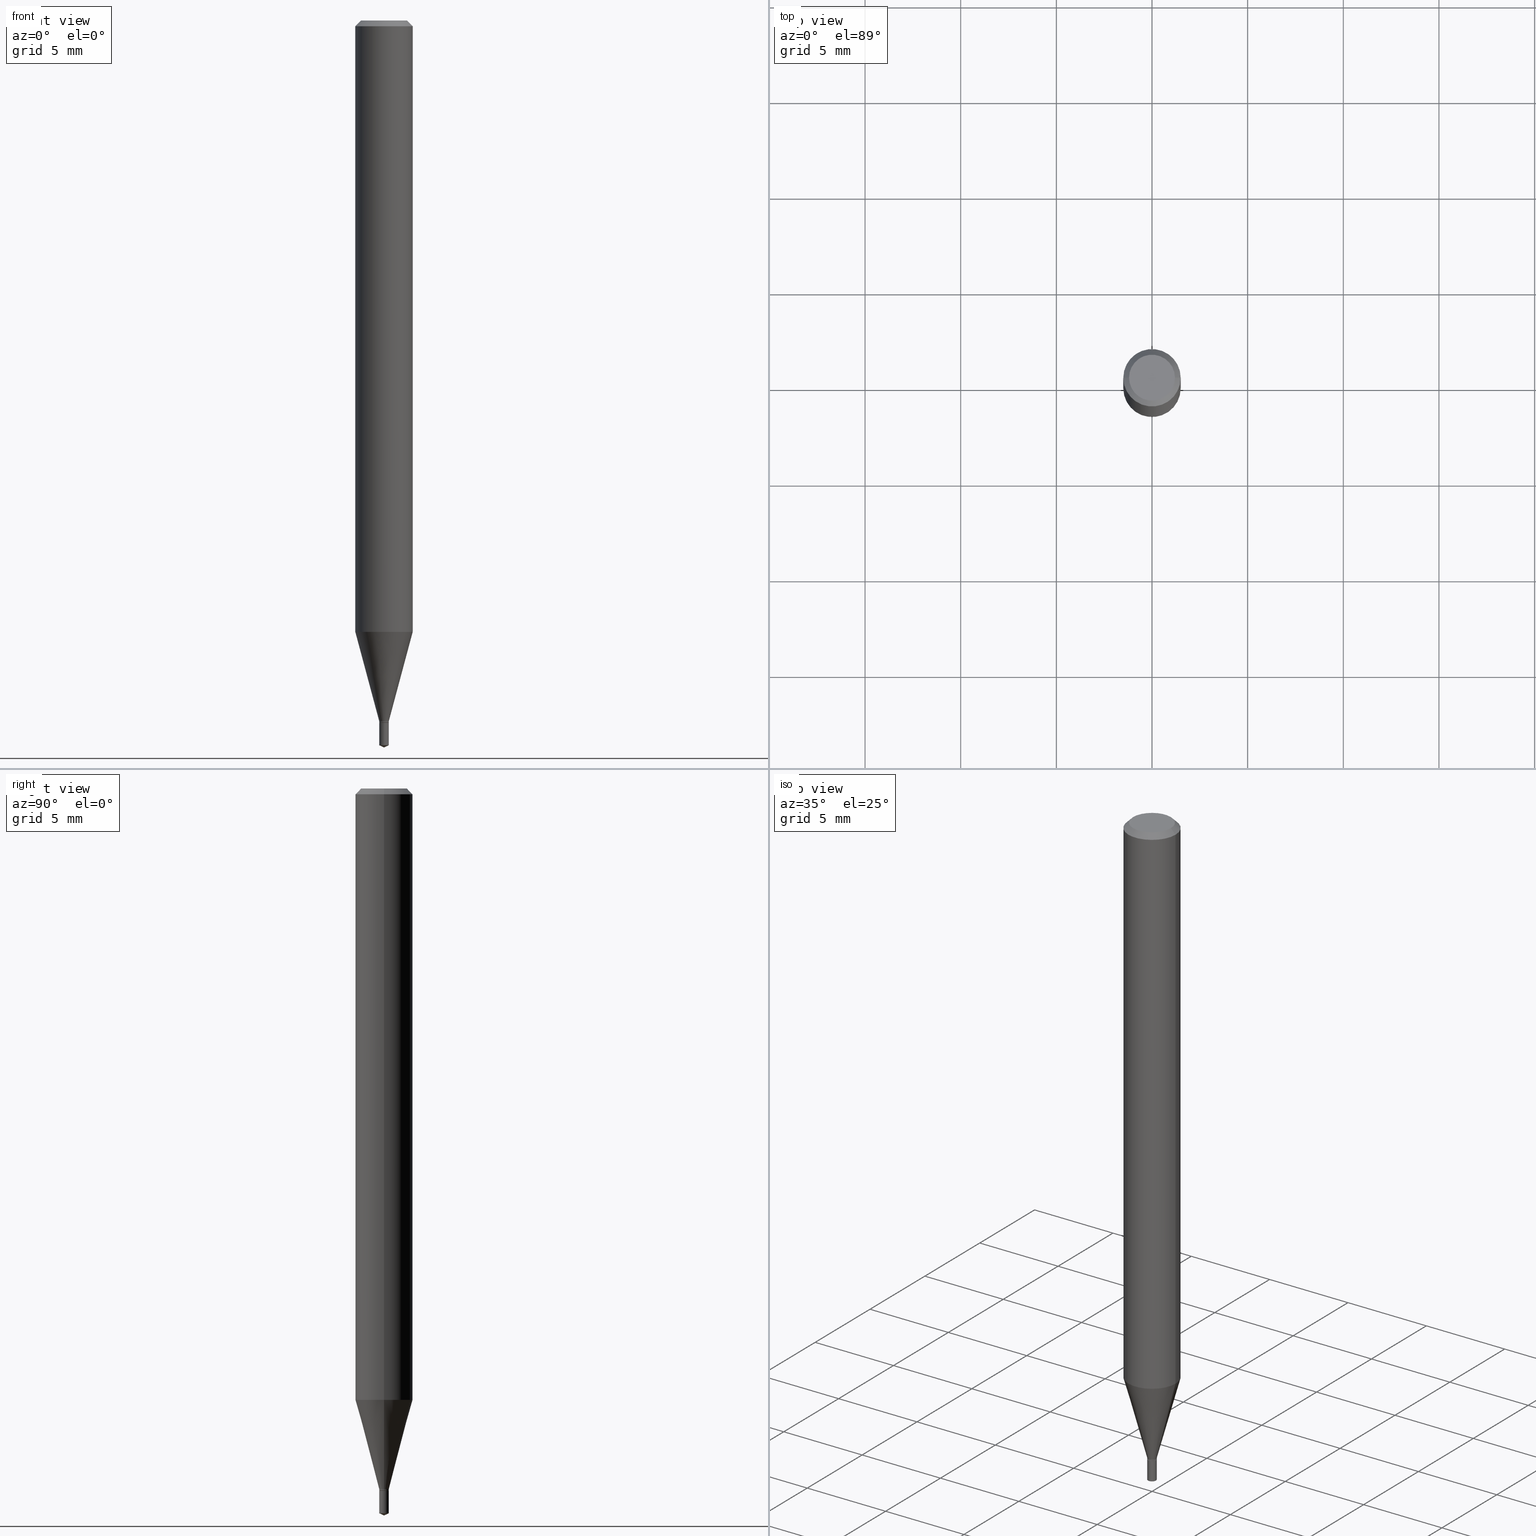
[diagram: canonical four-view strip — front | top / right | iso, engineering-drawing reading convention]
A machine part, canonical four-view strip (front | top / right | iso — engineering-drawing reading convention). The complete STEP part file that produces these views, byte-faithful:
ISO-10303-21;
HEADER;
FILE_DESCRIPTION (( 'STEP AP203' ),
    '1' );
FILE_NAME ('07059.STEP',
    '2024-04-23T19:28:40',
    ( '' ),
    ( '' ),
    'SwSTEP 2.0',
    'SolidWorks 2023',
    '' );
FILE_SCHEMA (( 'CONFIG_CONTROL_DESIGN' ));
ENDSEC;

DATA;
#1 = FACE_OUTER_BOUND ( 'NONE', #410, .T. ) ;
#2 = ORIENTED_EDGE ( 'NONE', *, *, #235, .F. ) ;
#3 = DIRECTION ( 'NONE',  ( -2.445468806185136597E-29, 3.491481338843145583E-15, 1.000000000000000000 ) ) ;
#4 = AXIS2_PLACEMENT_3D ( 'NONE', #239, #310, #191 ) ;
#5 = CARTESIAN_POINT ( 'NONE',  ( 3.533457878056902611E-29, -5.044841386494460595E-15, -1.444899999999999629 ) ) ;
#6 = LINE ( 'NONE', #50, #71 ) ;
#7 = DIRECTION ( 'NONE',  ( 2.438088387897960049E-29, -3.491481338843145188E-15, -1.000000000000000000 ) ) ;
#8 = DIRECTION ( 'NONE',  ( 1.000000000000000000, -6.982962677686229634E-15, 0.000000000000000000 ) ) ;
#9 = AXIS2_PLACEMENT_3D ( 'NONE', #478, #259, #104 ) ;
#10 = CC_DESIGN_PERSON_AND_ORGANIZATION_ASSIGNMENT ( #113, #369, ( #434 ) ) ;
#11 = LOCAL_TIME ( 15, 28, 40.00000000000000000, #426 ) ;
#12 = DIRECTION ( 'NONE',  ( -6.328713451373396200E-15, -0.9063077870366522681, 0.4226182617406940567 ) ) ;
#13 = PERSON ( 'UNSPECIFIED', 'UNSPECIFIED', 'UNSPECIFIED', ('UNSPECIFIED'), ('UNSPECIFIED'), ('UNSPECIFIED') ) ;
#14 = DIRECTION ( 'NONE',  ( -2.445468806185136597E-29, 3.491481338843145583E-15, 1.000000000000000000 ) ) ;
#15 = CALENDAR_DATE ( 2024, 23, 4 ) ;
#16 = ORIENTED_EDGE ( 'NONE', *, *, #320, .T. ) ;
#17 = ADVANCED_FACE ( 'NONE', ( #296 ), #302, .T. ) ;
#18 = CARTESIAN_POINT ( 'NONE',  ( 0.04724000000000000421, -3.852183633974369345E-16, -3.380025165621689721E-19 ) ) ;
#19 = CONICAL_SURFACE ( 'NONE', #295, 0.009349999999999998937, 0.7853981633978228682 ) ;
#20 = DIRECTION ( 'NONE',  ( 1.000000000000000000, -6.982962677686229634E-15, 0.000000000000000000 ) ) ;
#21 = CARTESIAN_POINT ( 'NONE',  ( 3.533457878056902611E-29, -5.044841386494460595E-15, -1.444899999999999629 ) ) ;
#22 = EDGE_CURVE ( 'NONE', #380, #157, #210, .T. ) ;
#23 = DIRECTION ( 'NONE',  ( -2.445468806185136597E-29, 3.491481338843145583E-15, 1.000000000000000000 ) ) ;
#24 = DIRECTION ( 'NONE',  ( 1.000000000000000000, 0.000000000000000000, 0.000000000000000000 ) ) ;
#25 = EDGE_CURVE ( 'NONE', #193, #217, #211, .T. ) ;
#26 = CIRCLE ( 'NONE', #106, 0.009849999999999995912 ) ;
#27 = APPROVAL_PERSON_ORGANIZATION ( #73, #286, #215 ) ;
#28 = CYLINDRICAL_SURFACE ( 'NONE', #367, 0.05905000000000008159 ) ;
#29 = APPLICATION_PROTOCOL_DEFINITION ( 'international standard', 'config_control_design', 1994, #437 ) ;
#30 = CARTESIAN_POINT ( 'NONE',  ( 2.888098660104662452E-31, -4.123439461173777798E-17, -0.01181000000000006697 ) ) ;
#31 = ORIENTED_EDGE ( 'NONE', *, *, #123, .F. ) ;
#32 = DIRECTION ( 'NONE',  ( -1.000000000000000000, 6.982962677686266711E-15, 0.000000000000000000 ) ) ;
#33 = ORIENTED_EDGE ( 'NONE', *, *, #67, .T. ) ;
#34 = CARTESIAN_POINT ( 'NONE',  ( 3.526121471638348605E-29, -5.034366942477931573E-15, -1.441899999999999959 ) ) ;
#35 = AXIS2_PLACEMENT_3D ( 'NONE', #308, #373, #78 ) ;
#36 = CIRCLE ( 'NONE', #85, 0.009849999999999999381 ) ;
#37 = CALENDAR_DATE ( 2024, 23, 4 ) ;
#38 = EDGE_LOOP ( 'NONE', ( #414, #255 ) ) ;
#39 = CARTESIAN_POINT ( 'NONE',  ( 3.533457878056903732E-29, -5.044841386494461384E-15, -1.444899999999999851 ) ) ;
#40 = SHAPE_DEFINITION_REPRESENTATION ( #63, #43 ) ;
#41 = ORIENTED_EDGE ( 'NONE', *, *, #320, .F. ) ;
#42 = ADVANCED_FACE ( 'NONE', ( #256 ), #318, .T. ) ;
#43 = ADVANCED_BREP_SHAPE_REPRESENTATION ( '07059', ( #479, #333, #261 ), #468 ) ;
#44 = FACE_OUTER_BOUND ( 'NONE', #51, .T. ) ;
#45 = ORIENTED_EDGE ( 'NONE', *, *, #115, .F. ) ;
#46 = DATE_TIME_ROLE ( 'classification_date' ) ;
#47 = ORIENTED_EDGE ( 'NONE', *, *, #218, .F. ) ;
#48 = VECTOR ( 'NONE', #159, 39.37007874015748143 ) ;
#49 = DIRECTION ( 'NONE',  ( -2.445468806185136597E-29, 3.491481338843145583E-15, 1.000000000000000000 ) ) ;
#50 = CARTESIAN_POINT ( 'NONE',  ( -0.009849999999999999381, 6.998845947236986391E-17, -4.845151063901081251E-31 ) ) ;
#51 = EDGE_LOOP ( 'NONE', ( #163, #394, #377, #47 ) ) ;
#52 = CC_DESIGN_PERSON_AND_ORGANIZATION_ASSIGNMENT ( #77, #232, ( #303 ) ) ;
#53 = CARTESIAN_POINT ( 'NONE',  ( 3.526121471638348605E-29, -5.034366942477931573E-15, -1.441899999999999959 ) ) ;
#54 = DESIGN_CONTEXT ( 'detailed design', #449, 'design' ) ;
#55 = CONICAL_SURFACE ( 'NONE', #172, 0.009849999999999999381, 0.2617993877991498519 ) ;
#56 = CIRCLE ( 'NONE', #195, 0.009849999999999999381 ) ;
#57 = EDGE_LOOP ( 'NONE', ( #429, #204, #323, #311 ) ) ;
#58 = ORIENTED_EDGE ( 'NONE', *, *, #486, .T. ) ;
#59 = ORIENTED_EDGE ( 'NONE', *, *, #93, .T. ) ;
#60 = DIRECTION ( 'NONE',  ( 1.000000000000000000, -6.982962677686229634E-15, 0.000000000000000000 ) ) ;
#61 = ORIENTED_EDGE ( 'NONE', *, *, #396, .F. ) ;
#62 = DIRECTION ( 'NONE',  ( -2.445468806185136597E-29, 3.491481338843145583E-15, 1.000000000000000000 ) ) ;
#63 = PRODUCT_DEFINITION_SHAPE ( 'NONE', 'NONE',  #161 ) ;
#64 = AXIS2_PLACEMENT_3D ( 'NONE', #130, #87, #118 ) ;
#65 = AXIS2_PLACEMENT_3D ( 'NONE', #364, #438, #178 ) ;
#66 = DIRECTION ( 'NONE',  ( 6.439704144417050863E-15, 0.9063077870366551547, 0.4226182617406878395 ) ) ;
#67 = EDGE_CURVE ( 'NONE', #313, #448, #415, .T. ) ;
#68 = DIRECTION ( 'NONE',  ( -2.445468806185136597E-29, 3.491481338843145583E-15, 1.000000000000000000 ) ) ;
#69 = CARTESIAN_POINT ( 'NONE',  ( 0.009849999999999999381, -5.111877828200249487E-15, -1.444400000000000128 ) ) ;
#70 = APPROVAL_ROLE ( '' ) ;
#71 = VECTOR ( 'NONE', #460, 39.37007874015748143 ) ;
#72 = CARTESIAN_POINT ( 'NONE',  ( 3.533457878056902611E-29, -5.044841386494460595E-15, -1.444899999999999629 ) ) ;
#73 = PERSON_AND_ORGANIZATION ( #13, #238 ) ;
#74 = EDGE_LOOP ( 'NONE', ( #33, #201, #61, #80 ) ) ;
#75 = ADVANCED_FACE ( 'NONE', ( #466 ), #353, .F. ) ;
#76 = DIRECTION ( 'NONE',  ( 1.000000000000000000, -6.982962677686267499E-15, 4.876176775795936353E-29 ) ) ;
#77 = PERSON_AND_ORGANIZATION ( #13, #238 ) ;
#78 = DIRECTION ( 'NONE',  ( 1.000000000000000000, -6.982962677686266711E-15, 4.876185090822587894E-29 ) ) ;
#79 = DATE_AND_TIME ( #487, #316 ) ;
#80 = ORIENTED_EDGE ( 'NONE', *, *, #93, .F. ) ;
#81 = VECTOR ( 'NONE', #432, 39.37007874015748143 ) ;
#82 = DIRECTION ( 'NONE',  ( 1.000000000000000000, -6.982962677686229634E-15, 0.000000000000000000 ) ) ;
#83 = CIRCLE ( 'NONE', #35, 0.04724000000000000421 ) ;
#84 = ADVANCED_FACE ( 'NONE', ( #168 ), #156, .T. ) ;
#85 = AXIS2_PLACEMENT_3D ( 'NONE', #147, #260, #398 ) ;
#86 = ORIENTED_EDGE ( 'NONE', *, *, #22, .T. ) ;
#87 = DIRECTION ( 'NONE',  ( -2.488523630950229593E-29, 3.429824379251090746E-15, 1.000000000000000000 ) ) ;
#88 = APPROVAL ( #267, 'UNSPECIFIED' ) ;
#89 = ORIENTED_EDGE ( 'NONE', *, *, #246, .T. ) ;
#90 = CARTESIAN_POINT ( 'NONE',  ( 3.649440174339429829E-29, -5.204694763976527624E-15, -1.491506869567173377 ) ) ;
#91 = CC_DESIGN_APPROVAL ( #103, ( #207 ) ) ;
#92 = CLOSED_SHELL ( 'NONE', ( #227, #17, #132, #446, #42, #309, #109, #300, #352, #75, #186, #424 ) ) ;
#93 = EDGE_CURVE ( 'NONE', #313, #347, #287, .T. ) ;
#94 = LENGTH_MEASURE_WITH_UNIT ( LENGTH_MEASURE( 0.02539999999999999897 ), #289 );
#95 = DIRECTION ( 'NONE',  ( 2.445468806185136597E-29, -3.491481338843145583E-15, -1.000000000000000000 ) ) ;
#96 = CARTESIAN_POINT ( 'NONE',  ( 0.000000000000000000, 0.000000000000000000, 0.000000000000000000 ) ) ;
#97 =( CONVERSION_BASED_UNIT ( 'INCH', #94 ) LENGTH_UNIT ( ) NAMED_UNIT ( #202 ) );
#98 = LINE ( 'NONE', #176, #237 ) ;
#99 = EDGE_CURVE ( 'NONE', #157, #372, #26, .T. ) ;
#100 = CC_DESIGN_SECURITY_CLASSIFICATION ( #207, ( #303 ) ) ;
#101 = EDGE_LOOP ( 'NONE', ( #382, #230, #125, #453 ) ) ;
#102 = DIRECTION ( 'NONE',  ( 1.000000000000000000, -6.982962677686276177E-15, 0.000000000000000000 ) ) ;
#103 = APPROVAL ( #409, 'UNSPECIFIED' ) ;
#104 = DIRECTION ( 'NONE',  ( 1.000000000000000000, -6.982962677686266711E-15, 0.000000000000000000 ) ) ;
#105 = CARTESIAN_POINT ( 'NONE',  ( -6.878218237517437962E-17, -0.009850000000005043957, -1.444899999999999851 ) ) ;
#106 = AXIS2_PLACEMENT_3D ( 'NONE', #90, #319, #212 ) ;
#107 = CIRCLE ( 'NONE', #4, 0.009849999999999999381 ) ;
#108 = CONICAL_SURFACE ( 'NONE', #436, 0.009349999999999998937, 0.7853981633978228682 ) ;
#109 = ADVANCED_FACE ( 'NONE', ( #359 ), #55, .T. ) ;
#110 = CARTESIAN_POINT ( 'NONE',  ( 3.301311524714627956E-28, 3.717170584393863405E-14, -1.444899999999999629 ) ) ;
#111 = DATE_AND_TIME ( #15, #11 ) ;
#112 = CARTESIAN_POINT ( 'NONE',  ( -0.009349999999999998937, -4.975756413526781032E-15, -1.444899999999999629 ) ) ;
#113 = PERSON_AND_ORGANIZATION ( #13, #238 ) ;
#114 = DIRECTION ( 'NONE',  ( 1.000000000000000000, -6.982962677686265922E-15, 4.876176775795935793E-29 ) ) ;
#115 = EDGE_CURVE ( 'NONE', #372, #298, #461, .T. ) ;
#116 = PERSON_AND_ORGANIZATION ( #13, #238 ) ;
#117 = EDGE_LOOP ( 'NONE', ( #350, #16 ) ) ;
#118 = DIRECTION ( 'NONE',  ( -6.982962677686265133E-15, -1.000000000000000000, 0.000000000000000000 ) ) ;
#119 = DATE_AND_TIME ( #371, #355 ) ;
#120 = VERTEX_POINT ( 'NONE', #420 ) ;
#121 = FACE_OUTER_BOUND ( 'NONE', #284, .T. ) ;
#122 = ORIENTED_EDGE ( 'NONE', *, *, #99, .T. ) ;
#123 = EDGE_CURVE ( 'NONE', #198, #245, #184, .T. ) ;
#124 = CARTESIAN_POINT ( 'NONE',  ( 6.998845947240634873E-17, 0.009849999999994791741, -1.491506869567173377 ) ) ;
#125 = ORIENTED_EDGE ( 'NONE', *, *, #441, .T. ) ;
#126 = VECTOR ( 'NONE', #12, 39.37007874015748854 ) ;
#127 = CARTESIAN_POINT ( 'NONE',  ( 3.077092071054366958E-29, -4.393271963566061633E-15, -1.258283100267610921 ) ) ;
#128 = AXIS2_PLACEMENT_3D ( 'NONE', #127, #3, #241 ) ;
#129 = VERTEX_POINT ( 'NONE', #464 ) ;
#130 = CARTESIAN_POINT ( 'NONE',  ( 3.533457878056903732E-29, -5.044841386494461384E-15, -1.444899999999999851 ) ) ;
#131 = CARTESIAN_POINT ( 'NONE',  ( 3.598660371658472125E-29, -5.309536535626676352E-15, -1.496099999999999985 ) ) ;
#132 = ADVANCED_FACE ( 'NONE', ( #209 ), #135, .T. ) ;
#133 = DIRECTION ( 'NONE',  ( -2.488523630950229873E-29, 3.429824379251091140E-15, 1.000000000000000000 ) ) ;
#134 = VECTOR ( 'NONE', #66, 39.37007874015748854 ) ;
#135 = CYLINDRICAL_SURFACE ( 'NONE', #290, 0.05905000000000008159 ) ;
#136 = CARTESIAN_POINT ( 'NONE',  ( -9.431250100929159114E-28, 1.298120074813150905E-13, 37.87397874015748300 ) ) ;
#137 = COORDINATED_UNIVERSAL_TIME_OFFSET ( 5, 0, .BEHIND. ) ;
#138 = ORIENTED_EDGE ( 'NONE', *, *, #175, .T. ) ;
#139 = CONICAL_SURFACE ( 'NONE', #288, 84.42940631927601203, 1.134464013796323556 ) ;
#140 = DIRECTION ( 'NONE',  ( -0.7071067811865454633, 2.468850131082235367E-15, -0.7071067811865495711 ) ) ;
#141 = EDGE_LOOP ( 'NONE', ( #356, #86, #386 ) ) ;
#142 = LINE ( 'NONE', #105, #368 ) ;
#143 = EDGE_CURVE ( 'NONE', #240, #245, #98, .T. ) ;
#144 = CARTESIAN_POINT ( 'NONE',  ( 3.532235143653811491E-29, -5.043095645825039880E-15, -1.444400000000000128 ) ) ;
#145 = AXIS2_PLACEMENT_3D ( 'NONE', #222, #23, #183 ) ;
#146 = DIRECTION ( 'NONE',  ( -0.2588190451025211281, 5.211531920934547886E-15, 0.9659258262890679791 ) ) ;
#147 = CARTESIAN_POINT ( 'NONE',  ( 3.533457878056903732E-29, -5.044841386494461384E-15, -1.444899999999999851 ) ) ;
#148 = EDGE_CURVE ( 'NONE', #372, #157, #455, .T. ) ;
#149 = MECHANICAL_CONTEXT ( 'NONE', #437, 'mechanical' ) ;
#150 = EDGE_LOOP ( 'NONE', ( #407, #473, #482, #31 ) ) ;
#151 = CARTESIAN_POINT ( 'NONE',  ( 0.000000000000000000, 0.000000000000000000, 0.000000000000000000 ) ) ;
#152 = APPROVAL_STATUS ( 'not_yet_approved' ) ;
#153 = ORIENTED_EDGE ( 'NONE', *, *, #463, .T. ) ;
#154 = VECTOR ( 'NONE', #474, 39.37007874015748143 ) ;
#155 = CARTESIAN_POINT ( 'NONE',  ( 3.526121471638348605E-29, -5.034366942477931573E-15, -1.441899999999999959 ) ) ;
#156 = CONICAL_SURFACE ( 'NONE', #321, 84.42940631927601203, 1.134464013796323556 ) ;
#157 = VERTEX_POINT ( 'NONE', #216 ) ;
#158 = ADVANCED_FACE ( 'NONE', ( #338 ), #306, .F. ) ;
#159 = DIRECTION ( 'NONE',  ( -0.7071067811868123609, 7.493145998871311837E-15, 0.7071067811862826735 ) ) ;
#160 = ORIENTED_EDGE ( 'NONE', *, *, #363, .F. ) ;
#161 = PRODUCT_DEFINITION ( 'UNKNOWN', '', #303, #54 ) ;
#162 = CARTESIAN_POINT ( 'NONE',  ( -0.009349999999999998937, -4.978405640700890656E-15, -1.444899999999999629 ) ) ;
#163 = ORIENTED_EDGE ( 'NONE', *, *, #472, .F. ) ;
#164 = DIRECTION ( 'NONE',  ( -2.445468806185136597E-29, 3.491481338843145583E-15, 1.000000000000000000 ) ) ;
#165 = VECTOR ( 'NONE', #146, 39.37007874015748854 ) ;
#166 = ORIENTED_EDGE ( 'NONE', *, *, #206, .F. ) ;
#167 = DIRECTION ( 'NONE',  ( -2.488523630950229593E-29, 3.429824379251090746E-15, 1.000000000000000000 ) ) ;
#168 = FACE_OUTER_BOUND ( 'NONE', #141, .T. ) ;
#169 = VECTOR ( 'NONE', #133, 39.37007874015748143 ) ;
#170 = CARTESIAN_POINT ( 'NONE',  ( 2.888098660104662452E-31, -4.123439461173777798E-17, -0.01181000000000006697 ) ) ;
#171 = AXIS2_PLACEMENT_3D ( 'NONE', #155, #374, #447 ) ;
#172 = AXIS2_PLACEMENT_3D ( 'NONE', #53, #422, #8 ) ;
#173 = EDGE_CURVE ( 'NONE', #380, #372, #301, .T. ) ;
#174 = CARTESIAN_POINT ( 'NONE',  ( 0.000000000000000000, 0.000000000000000000, 0.000000000000000000 ) ) ;
#175 = EDGE_CURVE ( 'NONE', #245, #198, #304, .T. ) ;
#176 = CARTESIAN_POINT ( 'NONE',  ( 0.05904999999999999832, -4.463468013801466955E-16, -0.01181000000000006697 ) ) ;
#177 = APPROVAL_DATE_TIME ( #119, #286 ) ;
#178 = DIRECTION ( 'NONE',  ( -6.982962677686265922E-15, -1.000000000000000000, 0.000000000000000000 ) ) ;
#179 = APPROVAL_PERSON_ORGANIZATION ( #205, #103, #379 ) ;
#180 = CARTESIAN_POINT ( 'NONE',  ( 3.533457878056902611E-29, -5.044841386494460595E-15, -1.444899999999999629 ) ) ;
#181 = EDGE_CURVE ( 'NONE', #307, #198, #395, .T. ) ;
#182 = DIRECTION ( 'NONE',  ( 1.000000000000000000, -6.982962677686276177E-15, 0.000000000000000000 ) ) ;
#183 = DIRECTION ( 'NONE',  ( 1.000000000000000000, -6.982962677686266711E-15, 4.876185090822587894E-29 ) ) ;
#184 = CIRCLE ( 'NONE', #433, 0.05904999999999999832 ) ;
#185 = APPLICATION_PROTOCOL_DEFINITION ( 'international standard', 'config_control_design', 1994, #449 ) ;
#186 = ADVANCED_FACE ( 'NONE', ( #435 ), #440, .F. ) ;
#187 = CARTESIAN_POINT ( 'NONE',  ( -0.05905000000000008159, 4.195754854663397395E-16, -2.904631170795525745E-30 ) ) ;
#188 = PERSON_AND_ORGANIZATION ( #13, #238 ) ;
#189 = CC_DESIGN_DATE_AND_TIME_ASSIGNMENT ( #452, #46, ( #207 ) ) ;
#190 = CARTESIAN_POINT ( 'NONE',  ( 3.723080204264637999E-29, -5.131360253797555667E-15, -1.496099999999999985 ) ) ;
#191 = DIRECTION ( 'NONE',  ( -6.982962677686265133E-15, -1.000000000000000000, 0.000000000000000000 ) ) ;
#192 = SECURITY_CLASSIFICATION_LEVEL ( 'unclassified' ) ;
#193 = VERTEX_POINT ( 'NONE', #112 ) ;
#194 = DIRECTION ( 'NONE',  ( -2.445468806185136597E-29, 3.491481338843145583E-15, 1.000000000000000000 ) ) ;
#195 = AXIS2_PLACEMENT_3D ( 'NONE', #144, #62, #20 ) ;
#196 = CC_DESIGN_DATE_AND_TIME_ASSIGNMENT ( #481, #391, ( #161 ) ) ;
#197 = APPROVAL_DATE_TIME ( #79, #103 ) ;
#198 = VERTEX_POINT ( 'NONE', #268 ) ;
#199 = CARTESIAN_POINT ( 'NONE',  ( -9.431250100929159114E-28, 1.298120074813150905E-13, 37.87397874015748300 ) ) ;
#200 = COORDINATED_UNIVERSAL_TIME_OFFSET ( 5, 0, .BEHIND. ) ;
#201 = ORIENTED_EDGE ( 'NONE', *, *, #275, .T. ) ;
#202 = DIMENSIONAL_EXPONENTS ( 1.000000000000000000, 0.000000000000000000, 0.000000000000000000, 0.000000000000000000, 0.000000000000000000, 0.000000000000000000, 0.000000000000000000 ) ;
#203 = DIRECTION ( 'NONE',  ( -2.445468806185136597E-29, 3.491481338843145583E-15, 1.000000000000000000 ) ) ;
#204 = ORIENTED_EDGE ( 'NONE', *, *, #181, .T. ) ;
#205 = PERSON_AND_ORGANIZATION ( #13, #238 ) ;
#206 = EDGE_CURVE ( 'NONE', #120, #198, #400, .T. ) ;
#207 = SECURITY_CLASSIFICATION ( '', '', #192 ) ;
#208 = DIRECTION ( 'NONE',  ( -2.445468806185136597E-29, 3.491481338843145583E-15, 1.000000000000000000 ) ) ;
#209 = FACE_OUTER_BOUND ( 'NONE', #57, .T. ) ;
#210 = LINE ( 'NONE', #131, #126 ) ;
#211 = CIRCLE ( 'NONE', #413, 0.009349999999999998937 ) ;
#212 = DIRECTION ( 'NONE',  ( -6.982962677686265922E-15, -1.000000000000000000, 0.000000000000000000 ) ) ;
#213 = CIRCLE ( 'NONE', #145, 0.04724000000000000421 ) ;
#214 = DIRECTION ( 'NONE',  ( -1.000000000000000000, 6.982962677686265922E-15, -4.876176775795935793E-29 ) ) ;
#215 = APPROVAL_ROLE ( '' ) ;
#216 = CARTESIAN_POINT ( 'NONE',  ( -6.878218237517319633E-17, -0.009850000000005203551, -1.491506869567173377 ) ) ;
#217 = VERTEX_POINT ( 'NONE', #362 ) ;
#218 = EDGE_CURVE ( 'NONE', #129, #280, #56, .T. ) ;
#219 = CARTESIAN_POINT ( 'NONE',  ( 3.533457878056903732E-29, -5.044841386494461384E-15, -1.444899999999999851 ) ) ;
#220 = LOCAL_TIME ( 15, 28, 40.00000000000000000, #137 ) ;
#221 = AXIS2_PLACEMENT_3D ( 'NONE', #357, #95, #248 ) ;
#222 = CARTESIAN_POINT ( 'NONE',  ( 8.265746106709734507E-48, -1.180129479067563789E-33, -3.380025165646692144E-19 ) ) ;
#223 = DIRECTION ( 'NONE',  ( -2.488523630950229873E-29, 3.429824379251091140E-15, 1.000000000000000000 ) ) ;
#224 = CARTESIAN_POINT ( 'NONE',  ( 6.998845947240634873E-17, 0.009849999999994953070, -1.444899999999999851 ) ) ;
#225 = VECTOR ( 'NONE', #381, 39.37007874015748143 ) ;
#226 = APPROVAL_DATE_TIME ( #111, #88 ) ;
#227 = ADVANCED_FACE ( 'NONE', ( #297 ), #108, .T. ) ;
#228 = DIRECTION ( 'NONE',  ( -6.982962677686265133E-15, -1.000000000000000000, 0.000000000000000000 ) ) ;
#229 = COORDINATED_UNIVERSAL_TIME_OFFSET ( 5, 0, .BEHIND. ) ;
#230 = ORIENTED_EDGE ( 'NONE', *, *, #218, .T. ) ;
#231 = CARTESIAN_POINT ( 'NONE',  ( -0.05905000000000017180, -3.973696478099721352E-15, -1.258283100267610921 ) ) ;
#232 = PERSON_AND_ORGANIZATION_ROLE ( 'design_supplier' ) ;
#233 = ORIENTED_EDGE ( 'NONE', *, *, #67, .F. ) ;
#234 = DIRECTION ( 'NONE',  ( -2.488523630950229593E-29, 3.429824379251090746E-15, 1.000000000000000000 ) ) ;
#235 = EDGE_CURVE ( 'NONE', #298, #252, #36, .T. ) ;
#236 = EDGE_LOOP ( 'NONE', ( #467, #153, #59, #404 ) ) ;
#237 = VECTOR ( 'NONE', #326, 39.37007874015748143 ) ;
#238 = ORGANIZATION ( 'UNSPECIFIED', 'UNSPECIFIED', '' ) ;
#239 = CARTESIAN_POINT ( 'NONE',  ( 3.533457878056903732E-29, -5.044841386494461384E-15, -1.444899999999999851 ) ) ;
#240 = VERTEX_POINT ( 'NONE', #18 ) ;
#241 = DIRECTION ( 'NONE',  ( 1.000000000000000000, -6.982962677686270655E-15, 0.000000000000000000 ) ) ;
#242 = ORIENTED_EDGE ( 'NONE', *, *, #235, .T. ) ;
#243 = EDGE_CURVE ( 'NONE', #280, #129, #283, .T. ) ;
#244 = CIRCLE ( 'NONE', #128, 0.05905000000000015792 ) ;
#245 = VERTEX_POINT ( 'NONE', #365 ) ;
#246 = EDGE_CURVE ( 'NONE', #217, #193, #322, .T. ) ;
#247 = DIRECTION ( 'NONE',  ( -2.445468806185136597E-29, 3.491481338843145583E-15, 1.000000000000000000 ) ) ;
#248 = DIRECTION ( 'NONE',  ( -1.000000000000000000, 6.982962677686266711E-15, 0.000000000000000000 ) ) ;
#249 = UNCERTAINTY_MEASURE_WITH_UNIT (LENGTH_MEASURE( 1.000000000000000082E-05 ), #97, 'distance_accuracy_value', 'NONE');
#250 = ORIENTED_EDGE ( 'NONE', *, *, #143, .T. ) ;
#251 = VECTOR ( 'NONE', #140, 39.37007874015748143 ) ;
#252 = VERTEX_POINT ( 'NONE', #332 ) ;
#253 = AXIS2_PLACEMENT_3D ( 'NONE', #39, #234, #228 ) ;
#254 = CLOSED_SHELL ( 'NONE', ( #325, #431, #84, #421, #158 ) ) ;
#255 = ORIENTED_EDGE ( 'NONE', *, *, #25, .F. ) ;
#256 = FACE_OUTER_BOUND ( 'NONE', #445, .T. ) ;
#257 = EDGE_CURVE ( 'NONE', #347, #245, #475, .T. ) ;
#258 = ORIENTED_EDGE ( 'NONE', *, *, #243, .T. ) ;
#259 = DIRECTION ( 'NONE',  ( -2.445468806185136597E-29, 3.491481338843145583E-15, 1.000000000000000000 ) ) ;
#260 = DIRECTION ( 'NONE',  ( -2.488523630950229593E-29, 3.429824379251090746E-15, 1.000000000000000000 ) ) ;
#261 = AXIS2_PLACEMENT_3D ( 'NONE', #428, #439, #24 ) ;
#262 = DIRECTION ( 'NONE',  ( -2.438088387897960049E-29, 3.491481338843145188E-15, 1.000000000000000000 ) ) ;
#263 = EDGE_CURVE ( 'NONE', #157, #252, #142, .T. ) ;
#264 =( NAMED_UNIT ( * ) SI_UNIT ( $, .STERADIAN. ) SOLID_ANGLE_UNIT ( ) );
#265 = DIRECTION ( 'NONE',  ( -2.445468806185136597E-29, 3.491481338843145583E-15, 1.000000000000000000 ) ) ;
#266 = EDGE_CURVE ( 'NONE', #120, #240, #213, .T. ) ;
#267 = APPROVAL_STATUS ( 'not_yet_approved' ) ;
#268 = CARTESIAN_POINT ( 'NONE',  ( -0.05904999999999999832, -1.797677693622558610E-15, -0.01181000000000006697 ) ) ;
#269 = AXIS2_PLACEMENT_3D ( 'NONE', #180, #68, #182 ) ;
#270 = PERSON_AND_ORGANIZATION_ROLE ( 'creator' ) ;
#271 = EDGE_LOOP ( 'NONE', ( #285, #488, #315, #470 ) ) ;
#272 = LINE ( 'NONE', #405, #484 ) ;
#273 = PERSON_AND_ORGANIZATION ( #13, #238 ) ;
#274 = EDGE_LOOP ( 'NONE', ( #343, #294, #456 ) ) ;
#275 = EDGE_CURVE ( 'NONE', #448, #307, #305, .T. ) ;
#276 = CARTESIAN_POINT ( 'NONE',  ( -0.009849999999999999381, -4.968742834679114889E-15, -1.441899999999999959 ) ) ;
#277 = COORDINATED_UNIVERSAL_TIME_OFFSET ( 5, 0, .BEHIND. ) ;
#278 = ORIENTED_EDGE ( 'NONE', *, *, #263, .T. ) ;
#279 = DIRECTION ( 'NONE',  ( 1.000000000000000000, -6.982962677686276177E-15, 0.000000000000000000 ) ) ;
#280 = VERTEX_POINT ( 'NONE', #69 ) ;
#281 = CIRCLE ( 'NONE', #425, 0.05905000000000015792 ) ;
#282 = FACE_OUTER_BOUND ( 'NONE', #101, .T. ) ;
#283 = CIRCLE ( 'NONE', #477, 0.009849999999999999381 ) ;
#284 = EDGE_LOOP ( 'NONE', ( #122, #465, #418, #330 ) ) ;
#285 = ORIENTED_EDGE ( 'NONE', *, *, #143, .F. ) ;
#286 = APPROVAL ( #152, 'UNSPECIFIED' ) ;
#287 = LINE ( 'NONE', #419, #399 ) ;
#288 = AXIS2_PLACEMENT_3D ( 'NONE', #199, #411, #402 ) ;
#289 =( LENGTH_UNIT ( ) NAMED_UNIT ( * ) SI_UNIT ( $, .METRE. ) );
#290 = AXIS2_PLACEMENT_3D ( 'NONE', #96, #14, #423 ) ;
#291 = ORIENTED_EDGE ( 'NONE', *, *, #148, .T. ) ;
#292 = DIRECTION ( 'NONE',  ( 0.2588190451025211281, 1.565188264969622954E-15, 0.9659258262890679791 ) ) ;
#293 = CARTESIAN_POINT ( 'NONE',  ( 6.998845947240517776E-17, 0.009849999999994953070, -1.444899999999999851 ) ) ;
#294 = ORIENTED_EDGE ( 'NONE', *, *, #173, .T. ) ;
#295 = AXIS2_PLACEMENT_3D ( 'NONE', #72, #164, #279 ) ;
#296 = FACE_OUTER_BOUND ( 'NONE', #458, .T. ) ;
#297 = FACE_OUTER_BOUND ( 'NONE', #390, .T. ) ;
#298 = VERTEX_POINT ( 'NONE', #224 ) ;
#299 = CARTESIAN_POINT ( 'NONE',  ( 3.724171219330768082E-29, -5.131360253797555667E-15, -1.496099999999999985 ) ) ;
#300 = ADVANCED_FACE ( 'NONE', ( #366 ), #28, .T. ) ;
#301 = LINE ( 'NONE', #299, #134 ) ;
#302 = CONICAL_SURFACE ( 'NONE', #221, 0.05904999999999999832, 0.7853981633974453924 ) ;
#303 = PRODUCT_DEFINITION_FORMATION_WITH_SPECIFIED_SOURCE ( 'ANY', '', #434, .NOT_KNOWN. ) ;
#304 = CIRCLE ( 'NONE', #9, 0.05904999999999999832 ) ;
#305 = LINE ( 'NONE', #335, #165 ) ;
#306 = PLANE ( 'NONE',  #485 ) ;
#307 = VERTEX_POINT ( 'NONE', #231 ) ;
#308 = CARTESIAN_POINT ( 'NONE',  ( 8.265746106709734507E-48, -1.180129479067563789E-33, -3.380025165646692144E-19 ) ) ;
#309 = ADVANCED_FACE ( 'NONE', ( #282 ), #342, .T. ) ;
#310 = DIRECTION ( 'NONE',  ( -2.488523630950229593E-29, 3.429824379251090746E-15, 1.000000000000000000 ) ) ;
#311 = ORIENTED_EDGE ( 'NONE', *, *, #257, .F. ) ;
#312 = CYLINDRICAL_SURFACE ( 'NONE', #253, 0.009849999999999999381 ) ;
#313 = VERTEX_POINT ( 'NONE', #314 ) ;
#314 = CARTESIAN_POINT ( 'NONE',  ( 0.009849999999999999381, -5.103149124853140392E-15, -1.441899999999999959 ) ) ;
#315 = ORIENTED_EDGE ( 'NONE', *, *, #206, .T. ) ;
#316 = LOCAL_TIME ( 15, 28, 40.00000000000000000, #277 ) ;
#317 = FACE_OUTER_BOUND ( 'NONE', #274, .T. ) ;
#318 = CYLINDRICAL_SURFACE ( 'NONE', #388, 0.009849999999999999381 ) ;
#319 = DIRECTION ( 'NONE',  ( -2.488523630950229593E-29, 3.429824379251090746E-15, 1.000000000000000000 ) ) ;
#320 = EDGE_CURVE ( 'NONE', #240, #120, #83, .T. ) ;
#321 = AXIS2_PLACEMENT_3D ( 'NONE', #136, #167, #459 ) ;
#322 = CIRCLE ( 'NONE', #269, 0.009349999999999998937 ) ;
#323 = ORIENTED_EDGE ( 'NONE', *, *, #175, .F. ) ;
#324 = CARTESIAN_POINT ( 'NONE',  ( 3.526121471638348605E-29, -5.034366942477931573E-15, -1.441899999999999959 ) ) ;
#325 = ADVANCED_FACE ( 'NONE', ( #121 ), #312, .T. ) ;
#326 = DIRECTION ( 'NONE',  ( 0.7071067811865454633, -7.319954787623248157E-15, -0.7071067811865495711 ) ) ;
#327 = PERSON_AND_ORGANIZATION ( #13, #238 ) ;
#328 = LOCAL_TIME ( 15, 28, 40.00000000000000000, #200 ) ;
#329 = DIRECTION ( 'NONE',  ( 1.000000000000000000, -6.982962677686276177E-15, 0.000000000000000000 ) ) ;
#330 = ORIENTED_EDGE ( 'NONE', *, *, #263, .F. ) ;
#331 = CARTESIAN_POINT ( 'NONE',  ( 0.05905000000000008159, -4.123439461173746736E-16, 2.879382386107504424E-30 ) ) ;
#332 = CARTESIAN_POINT ( 'NONE',  ( -6.878218237517437962E-17, -0.009850000000005043957, -1.444899999999999851 ) ) ;
#333 = MANIFOLD_SOLID_BREP ( 'Body-Move/Copy2[2]', #92 ) ;
#334 = CC_DESIGN_PERSON_AND_ORGANIZATION_ASSIGNMENT ( #327, #417, ( #207 ) ) ;
#335 = CARTESIAN_POINT ( 'NONE',  ( -0.009849999999999999381, -4.964378483005560736E-15, -1.441899999999999959 ) ) ;
#336 = AXIS2_PLACEMENT_3D ( 'NONE', #387, #7, #214 ) ;
#337 = AXIS2_PLACEMENT_3D ( 'NONE', #151, #378, #451 ) ;
#338 = FACE_OUTER_BOUND ( 'NONE', #442, .T. ) ;
#339 = CARTESIAN_POINT ( 'NONE',  ( 3.077092071054366958E-29, -4.393271963566061633E-15, -1.258283100267610921 ) ) ;
#340 = DIRECTION ( 'NONE',  ( -2.445468806185136877E-29, 3.491481338843145188E-15, 1.000000000000000000 ) ) ;
#341 = CIRCLE ( 'NONE', #389, 0.009849999999999999381 ) ;
#342 = CYLINDRICAL_SURFACE ( 'NONE', #337, 0.009849999999999999381 ) ;
#343 = ORIENTED_EDGE ( 'NONE', *, *, #22, .F. ) ;
#344 = LINE ( 'NONE', #162, #48 ) ;
#345 = ORIENTED_EDGE ( 'NONE', *, *, #243, .F. ) ;
#346 = DIRECTION ( 'NONE',  ( -2.445468806185136597E-29, 3.491481338843145583E-15, 1.000000000000000000 ) ) ;
#347 = VERTEX_POINT ( 'NONE', #370 ) ;
#348 = ORIENTED_EDGE ( 'NONE', *, *, #441, .F. ) ;
#349 = CC_DESIGN_APPROVAL ( #286, ( #303 ) ) ;
#350 = ORIENTED_EDGE ( 'NONE', *, *, #266, .T. ) ;
#351 = DIRECTION ( 'NONE',  ( 1.000000000000000000, -6.982962677686229634E-15, 0.000000000000000000 ) ) ;
#352 = ADVANCED_FACE ( 'NONE', ( #454 ), #444, .T. ) ;
#353 = PLANE ( 'NONE',  #336 ) ;
#354 = AXIS2_PLACEMENT_3D ( 'NONE', #110, #262, #114 ) ;
#355 = LOCAL_TIME ( 15, 28, 40.00000000000000000, #229 ) ;
#356 = ORIENTED_EDGE ( 'NONE', *, *, #173, .F. ) ;
#357 = CARTESIAN_POINT ( 'NONE',  ( 2.888098660104662452E-31, -4.123439461173777798E-17, -0.01181000000000006697 ) ) ;
#358 = EDGE_CURVE ( 'NONE', #307, #347, #281, .T. ) ;
#359 = FACE_OUTER_BOUND ( 'NONE', #236, .T. ) ;
#360 = CC_DESIGN_PERSON_AND_ORGANIZATION_ASSIGNMENT ( #188, #270, ( #161 ) ) ;
#361 = CARTESIAN_POINT ( 'NONE',  ( -0.05904999999999999832, 3.711095515056362547E-16, -0.01181000000000006697 ) ) ;
#362 = CARTESIAN_POINT ( 'NONE',  ( 0.009349999999999998937, -5.110132087530827195E-15, -1.444899999999999629 ) ) ;
#363 = EDGE_CURVE ( 'NONE', #217, #280, #457, .T. ) ;
#364 = CARTESIAN_POINT ( 'NONE',  ( 3.649440174339429829E-29, -5.204694763976527624E-15, -1.491506869567173377 ) ) ;
#365 = CARTESIAN_POINT ( 'NONE',  ( 0.05904999999999999832, -4.535783407291118600E-16, -0.01181000000000006697 ) ) ;
#366 = FACE_OUTER_BOUND ( 'NONE', #150, .T. ) ;
#367 = AXIS2_PLACEMENT_3D ( 'NONE', #408, #203, #76 ) ;
#368 = VECTOR ( 'NONE', #223, 39.37007874015748143 ) ;
#369 = PERSON_AND_ORGANIZATION_ROLE ( 'design_owner' ) ;
#370 = CARTESIAN_POINT ( 'NONE',  ( 0.05905000000000017180, -4.805615909683436554E-15, -1.258283100267610921 ) ) ;
#371 = CALENDAR_DATE ( 2024, 23, 4 ) ;
#372 = VERTEX_POINT ( 'NONE', #124 ) ;
#373 = DIRECTION ( 'NONE',  ( -2.445468806185136597E-29, 3.491481338843145583E-15, 1.000000000000000000 ) ) ;
#374 = DIRECTION ( 'NONE',  ( -2.445468806185136597E-29, 3.491481338843145583E-15, 1.000000000000000000 ) ) ;
#375 = AXIS2_PLACEMENT_3D ( 'NONE', #324, #208, #351 ) ;
#376 = CONICAL_SURFACE ( 'NONE', #171, 0.009849999999999999381, 0.2617993877991498519 ) ;
#377 = ORIENTED_EDGE ( 'NONE', *, *, #363, .T. ) ;
#378 = DIRECTION ( 'NONE',  ( -2.445468806185136597E-29, 3.491481338843145583E-15, 1.000000000000000000 ) ) ;
#379 = APPROVAL_ROLE ( '' ) ;
#380 = VERTEX_POINT ( 'NONE', #190 ) ;
#381 = DIRECTION ( 'NONE',  ( 0.7071067811868123609, -2.468850131085031090E-15, 0.7071067811862826735 ) ) ;
#382 = ORIENTED_EDGE ( 'NONE', *, *, #486, .F. ) ;
#383 = CC_DESIGN_APPROVAL ( #88, ( #161 ) ) ;
#384 = EDGE_CURVE ( 'NONE', #252, #298, #107, .T. ) ;
#385 = DIRECTION ( 'NONE',  ( 1.000000000000000000, -6.982962677686266711E-15, 0.000000000000000000 ) ) ;
#386 = ORIENTED_EDGE ( 'NONE', *, *, #148, .F. ) ;
#387 = CARTESIAN_POINT ( 'NONE',  ( 4.132873053354867254E-48, -5.900647395337818946E-34, -1.690012582823346072E-19 ) ) ;
#388 = AXIS2_PLACEMENT_3D ( 'NONE', #174, #247, #393 ) ;
#389 = AXIS2_PLACEMENT_3D ( 'NONE', #34, #194, #82 ) ;
#390 = EDGE_LOOP ( 'NONE', ( #89, #490, #345, #160 ) ) ;
#391 = DATE_TIME_ROLE ( 'creation_date' ) ;
#392 = ORIENTED_EDGE ( 'NONE', *, *, #384, .T. ) ;
#393 = DIRECTION ( 'NONE',  ( 1.000000000000000000, -6.982962677686265922E-15, 4.876176775795935232E-29 ) ) ;
#394 = ORIENTED_EDGE ( 'NONE', *, *, #25, .T. ) ;
#395 = LINE ( 'NONE', #187, #81 ) ;
#396 = EDGE_CURVE ( 'NONE', #347, #307, #244, .T. ) ;
#397 = AXIS2_PLACEMENT_3D ( 'NONE', #30, #443, #32 ) ;
#398 = DIRECTION ( 'NONE',  ( -6.982962677686265133E-15, -1.000000000000000000, 0.000000000000000000 ) ) ;
#399 = VECTOR ( 'NONE', #292, 39.37007874015748854 ) ;
#400 = LINE ( 'NONE', #361, #251 ) ;
#401 = CARTESIAN_POINT ( 'NONE',  ( 3.532235143653811491E-29, -5.043095645825039880E-15, -1.444400000000000128 ) ) ;
#402 = DIRECTION ( 'NONE',  ( -6.982962677686268288E-15, -1.000000000000000000, 3.416856291041843023E-15 ) ) ;
#403 = CALENDAR_DATE ( 2024, 23, 4 ) ;
#404 = ORIENTED_EDGE ( 'NONE', *, *, #358, .F. ) ;
#405 = CARTESIAN_POINT ( 'NONE',  ( 0.009849999999999999381, -6.878218237520971813E-17, 4.803034124158995733E-31 ) ) ;
#406 = PERSON_AND_ORGANIZATION_ROLE ( 'creator' ) ;
#407 = ORIENTED_EDGE ( 'NONE', *, *, #181, .F. ) ;
#408 = CARTESIAN_POINT ( 'NONE',  ( 0.000000000000000000, 0.000000000000000000, 0.000000000000000000 ) ) ;
#409 = APPROVAL_STATUS ( 'not_yet_approved' ) ;
#410 = EDGE_LOOP ( 'NONE', ( #45, #291, #278, #2 ) ) ;
#411 = DIRECTION ( 'NONE',  ( -2.488523630950229593E-29, 3.429824379251090746E-15, 1.000000000000000000 ) ) ;
#412 = CC_DESIGN_PERSON_AND_ORGANIZATION_ASSIGNMENT ( #273, #406, ( #303 ) ) ;
#413 = AXIS2_PLACEMENT_3D ( 'NONE', #5, #427, #102 ) ;
#414 = ORIENTED_EDGE ( 'NONE', *, *, #246, .F. ) ;
#415 = CIRCLE ( 'NONE', #375, 0.009849999999999999381 ) ;
#416 = CARTESIAN_POINT ( 'NONE',  ( 0.009349999999999998937, -5.110132087530827195E-15, -1.444899999999999629 ) ) ;
#417 = PERSON_AND_ORGANIZATION_ROLE ( 'classification_officer' ) ;
#418 = ORIENTED_EDGE ( 'NONE', *, *, #384, .F. ) ;
#419 = CARTESIAN_POINT ( 'NONE',  ( 0.009849999999999999381, -5.103149124853140392E-15, -1.441899999999999959 ) ) ;
#420 = CARTESIAN_POINT ( 'NONE',  ( -0.04724000000000000421, 3.504923541997677355E-16, -3.380025165670481712E-19 ) ) ;
#421 = ADVANCED_FACE ( 'NONE', ( #1 ), #480, .T. ) ;
#422 = DIRECTION ( 'NONE',  ( -2.445468806185136597E-29, 3.491481338843145583E-15, 1.000000000000000000 ) ) ;
#423 = DIRECTION ( 'NONE',  ( 1.000000000000000000, -6.982962677686267499E-15, 4.876176775795936353E-29 ) ) ;
#424 = ADVANCED_FACE ( 'NONE', ( #44 ), #19, .T. ) ;
#425 = AXIS2_PLACEMENT_3D ( 'NONE', #339, #346, #489 ) ;
#426 = COORDINATED_UNIVERSAL_TIME_OFFSET ( 5, 0, .BEHIND. ) ;
#427 = DIRECTION ( 'NONE',  ( -2.445468806185136597E-29, 3.491481338843145583E-15, 1.000000000000000000 ) ) ;
#428 = CARTESIAN_POINT ( 'NONE',  ( 0.000000000000000000, 0.000000000000000000, 0.000000000000000000 ) ) ;
#429 = ORIENTED_EDGE ( 'NONE', *, *, #396, .T. ) ;
#430 = DIRECTION ( 'NONE',  ( 6.982962677686265922E-15, 1.000000000000000000, -3.429824379251091140E-15 ) ) ;
#431 = ADVANCED_FACE ( 'NONE', ( #317 ), #139, .T. ) ;
#432 = DIRECTION ( 'NONE',  ( -2.445468806185136877E-29, 3.491481338843145188E-15, 1.000000000000000000 ) ) ;
#433 = AXIS2_PLACEMENT_3D ( 'NONE', #170, #49, #385 ) ;
#434 = PRODUCT ( '07059', '07059', '', ( #149 ) ) ;
#435 = FACE_OUTER_BOUND ( 'NONE', #38, .T. ) ;
#436 = AXIS2_PLACEMENT_3D ( 'NONE', #21, #265, #329 ) ;
#437 = APPLICATION_CONTEXT ( 'configuration controlled 3d designs of mechanical parts and assemblies' ) ;
#438 = DIRECTION ( 'NONE',  ( -2.488523630950229593E-29, 3.429824379251090746E-15, 1.000000000000000000 ) ) ;
#439 = DIRECTION ( 'NONE',  ( 0.000000000000000000, 0.000000000000000000, 1.000000000000000000 ) ) ;
#440 = PLANE ( 'NONE',  #354 ) ;
#441 = EDGE_CURVE ( 'NONE', #280, #313, #272, .T. ) ;
#442 = EDGE_LOOP ( 'NONE', ( #392, #242 ) ) ;
#443 = DIRECTION ( 'NONE',  ( 2.445468806185136597E-29, -3.491481338843145583E-15, -1.000000000000000000 ) ) ;
#444 = CONICAL_SURFACE ( 'NONE', #397, 0.05904999999999999832, 0.7853981633974453924 ) ;
#445 = EDGE_LOOP ( 'NONE', ( #258, #58, #233, #348 ) ) ;
#446 = ADVANCED_FACE ( 'NONE', ( #483 ), #376, .T. ) ;
#447 = DIRECTION ( 'NONE',  ( 1.000000000000000000, -6.982962677686229634E-15, 0.000000000000000000 ) ) ;
#448 = VERTEX_POINT ( 'NONE', #276 ) ;
#449 = APPLICATION_CONTEXT ( 'configuration controlled 3d designs of mechanical parts and assemblies' ) ;
#450 = PRODUCT_RELATED_PRODUCT_CATEGORY ( 'detail', '', ( #434 ) ) ;
#451 = DIRECTION ( 'NONE',  ( 1.000000000000000000, -6.982962677686265922E-15, 4.876176775795935232E-29 ) ) ;
#452 = DATE_AND_TIME ( #37, #328 ) ;
#453 = ORIENTED_EDGE ( 'NONE', *, *, #463, .F. ) ;
#454 = FACE_OUTER_BOUND ( 'NONE', #271, .T. ) ;
#455 = CIRCLE ( 'NONE', #65, 0.009849999999999995912 ) ;
#456 = ORIENTED_EDGE ( 'NONE', *, *, #99, .F. ) ;
#457 = LINE ( 'NONE', #416, #225 ) ;
#458 = EDGE_LOOP ( 'NONE', ( #41, #250, #138, #166 ) ) ;
#459 = DIRECTION ( 'NONE',  ( -6.982962677686268288E-15, -1.000000000000000000, 3.416856291041843023E-15 ) ) ;
#460 = DIRECTION ( 'NONE',  ( -2.445468806185136877E-29, 3.491481338843145188E-15, 1.000000000000000000 ) ) ;
#461 = LINE ( 'NONE', #293, #169 ) ;
#462 = APPROVAL_PERSON_ORGANIZATION ( #116, #88, #70 ) ;
#463 = EDGE_CURVE ( 'NONE', #448, #313, #341, .T. ) ;
#464 = CARTESIAN_POINT ( 'NONE',  ( -0.009849999999999999381, -4.968742834679114889E-15, -1.444400000000000128 ) ) ;
#465 = ORIENTED_EDGE ( 'NONE', *, *, #115, .T. ) ;
#466 = FACE_OUTER_BOUND ( 'NONE', #117, .T. ) ;
#467 = ORIENTED_EDGE ( 'NONE', *, *, #275, .F. ) ;
#468 =( GEOMETRIC_REPRESENTATION_CONTEXT ( 3 ) GLOBAL_UNCERTAINTY_ASSIGNED_CONTEXT ( ( #249 ) ) GLOBAL_UNIT_ASSIGNED_CONTEXT ( ( #97, #469, #264 ) ) REPRESENTATION_CONTEXT ( 'NONE', 'WORKASPACE' ) );
#469 =( NAMED_UNIT ( * ) PLANE_ANGLE_UNIT ( ) SI_UNIT ( $, .RADIAN. ) );
#470 = ORIENTED_EDGE ( 'NONE', *, *, #123, .T. ) ;
#471 = DIRECTION ( 'NONE',  ( -2.445468806185136597E-29, 3.491481338843145583E-15, 1.000000000000000000 ) ) ;
#472 = EDGE_CURVE ( 'NONE', #193, #129, #344, .T. ) ;
#473 = ORIENTED_EDGE ( 'NONE', *, *, #358, .T. ) ;
#474 = DIRECTION ( 'NONE',  ( -2.445468806185136877E-29, 3.491481338843145188E-15, 1.000000000000000000 ) ) ;
#475 = LINE ( 'NONE', #331, #154 ) ;
#476 = DIRECTION ( 'NONE',  ( 2.488523630950229032E-29, -3.429824379251091140E-15, -1.000000000000000000 ) ) ;
#477 = AXIS2_PLACEMENT_3D ( 'NONE', #401, #471, #60 ) ;
#478 = CARTESIAN_POINT ( 'NONE',  ( 2.888098660104662452E-31, -4.123439461173777798E-17, -0.01181000000000006697 ) ) ;
#479 = MANIFOLD_SOLID_BREP ( 'Body-Move/Copy2[1]', #254 ) ;
#480 = CYLINDRICAL_SURFACE ( 'NONE', #64, 0.009849999999999999381 ) ;
#481 = DATE_AND_TIME ( #403, #220 ) ;
#482 = ORIENTED_EDGE ( 'NONE', *, *, #257, .T. ) ;
#483 = FACE_OUTER_BOUND ( 'NONE', #74, .T. ) ;
#484 = VECTOR ( 'NONE', #340, 39.37007874015748143 ) ;
#485 = AXIS2_PLACEMENT_3D ( 'NONE', #219, #476, #430 ) ;
#486 = EDGE_CURVE ( 'NONE', #129, #448, #6, .T. ) ;
#487 = CALENDAR_DATE ( 2024, 23, 4 ) ;
#488 = ORIENTED_EDGE ( 'NONE', *, *, #266, .F. ) ;
#489 = DIRECTION ( 'NONE',  ( 1.000000000000000000, -6.982962677686270655E-15, 0.000000000000000000 ) ) ;
#490 = ORIENTED_EDGE ( 'NONE', *, *, #472, .T. ) ;
ENDSEC;
END-ISO-10303-21;
